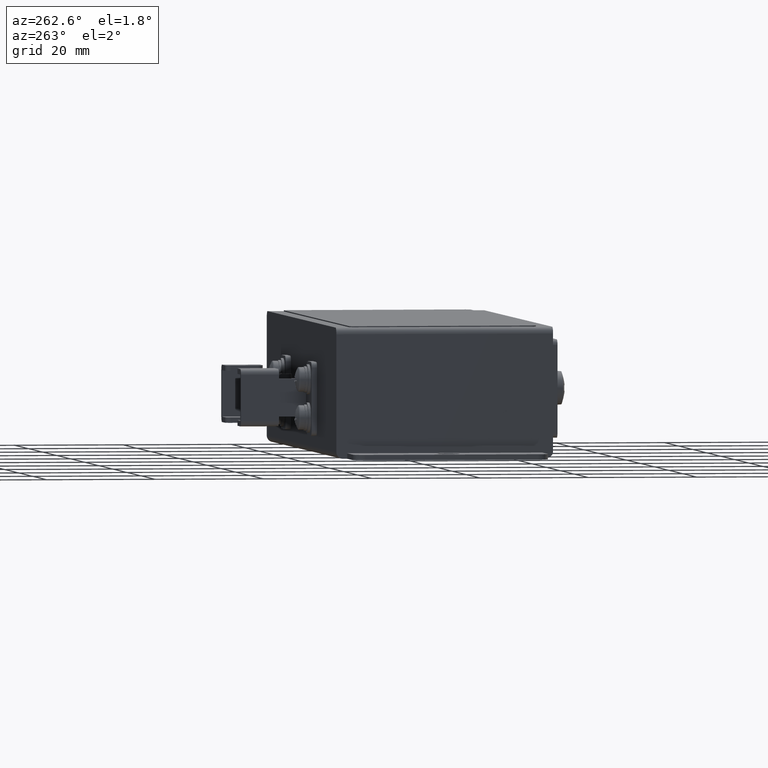
[diagram: clean part render]
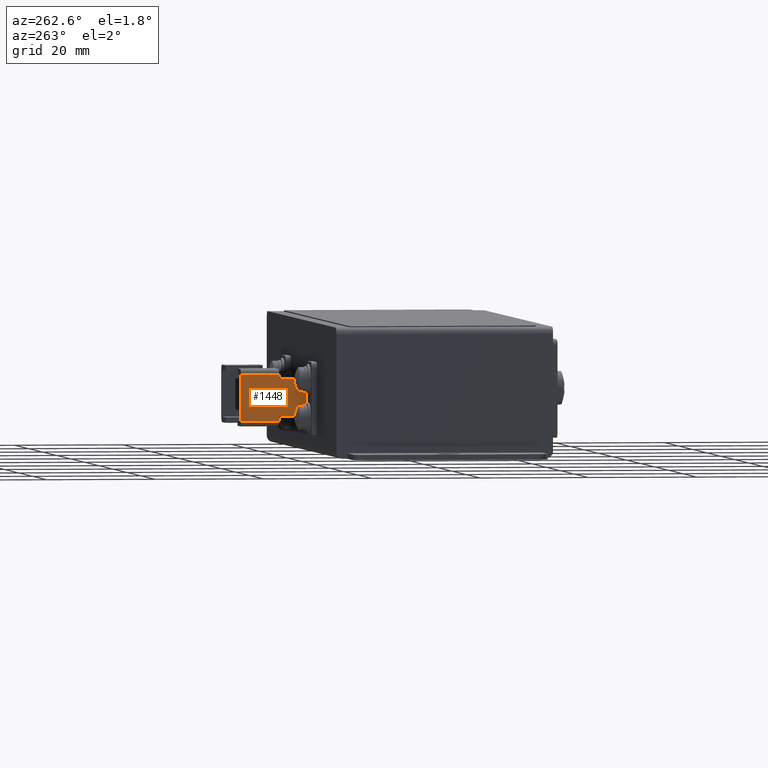
[diagram: same view with one face highlighted and labeled with its STEP entity id]
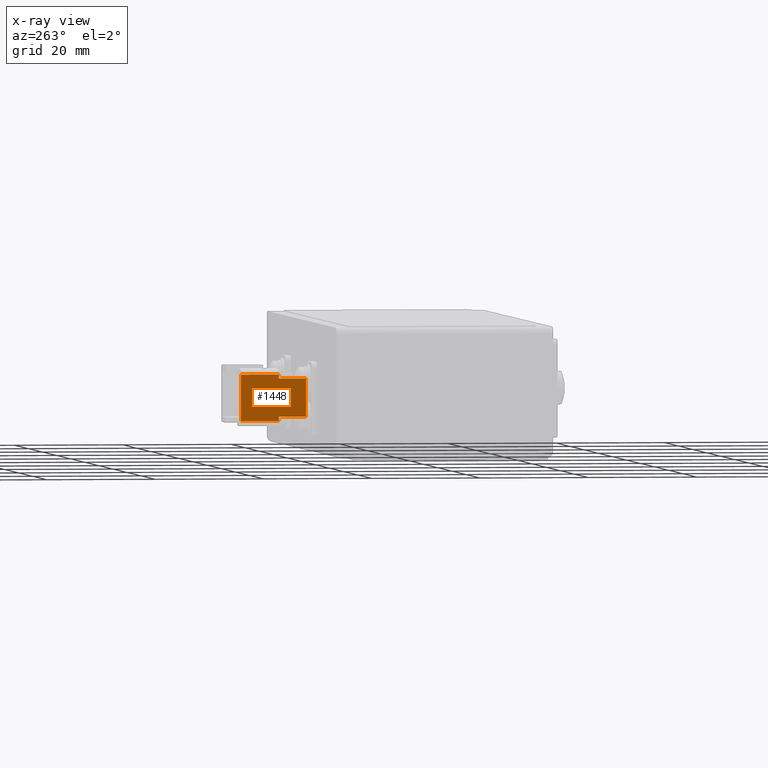
[diagram: x-ray of the same camera — body ghosted, the highlighted face saturated]
A machine part, auxiliary view. The second image highlights one B-rep face of the part: STEP entity #1448.
The next image is the same camera in x-ray: the body ghosted, the highlighted face saturated — about 0% of this face is hidden behind the body in this view.
In plain terms, the highlighted planar face has unit normal (-1, 0, 0).
Its self-contained STEP definition (entity closure, byte-faithful):
#1448 = ADVANCED_FACE( '', ( #3048 ), #3049, .T. );
#3048 = FACE_OUTER_BOUND( '', #4685, .T. );
#3049 = PLANE( '', #4686 );
#4685 = EDGE_LOOP( '', ( #8947, #8948, #8949, #8950, #8951, #8952, #8953, #8954 ) );
#4686 = AXIS2_PLACEMENT_3D( '', #8955, #8956, #8957 );
#8947 = ORIENTED_EDGE( '', *, *, #10242, .F. );
#8948 = ORIENTED_EDGE( '', *, *, #10862, .T. );
#8949 = ORIENTED_EDGE( '', *, *, #10376, .T. );
#8950 = ORIENTED_EDGE( '', *, *, #10885, .T. );
#8951 = ORIENTED_EDGE( '', *, *, #10268, .F. );
#8952 = ORIENTED_EDGE( '', *, *, #9787, .T. );
#8953 = ORIENTED_EDGE( '', *, *, #10689, .F. );
#8954 = ORIENTED_EDGE( '', *, *, #10604, .F. );
#8955 = CARTESIAN_POINT( '', ( -14.0000000000000, 32.9999855000000, -10.4000000000000 ) );
#8956 = DIRECTION( '', ( -1.00000000000000, 0.000000000000000, 0.000000000000000 ) );
#8957 = DIRECTION( '', ( 0.000000000000000, 0.000000000000000, 1.00000000000000 ) );
#9787 = EDGE_CURVE( '', #11918, #11916, #11919, .T. );
#10242 = EDGE_CURVE( '', #12618, #12620, #12621, .T. );
#10268 = EDGE_CURVE( '', #11918, #12658, #12659, .T. );
#10376 = EDGE_CURVE( '', #12810, #12811, #12812, .T. );
#10604 = EDGE_CURVE( '', #12620, #13098, #13099, .T. );
#10689 = EDGE_CURVE( '', #13098, #11916, #13206, .T. );
#10862 = EDGE_CURVE( '', #12618, #12810, #13403, .F. );
#10885 = EDGE_CURVE( '', #12811, #12658, #13427, .T. );
#11916 = VERTEX_POINT( '', #14996 );
#11918 = VERTEX_POINT( '', #14999 );
#11919 = LINE( '', #15000, #15001 );
#12618 = VERTEX_POINT( '', #16145 );
#12620 = VERTEX_POINT( '', #16147 );
#12621 = LINE( '', #16148, #16149 );
#12658 = VERTEX_POINT( '', #16211 );
#12659 = LINE( '', #16212, #16213 );
#12810 = VERTEX_POINT( '', #16463 );
#12811 = VERTEX_POINT( '', #16464 );
#12812 = LINE( '', #16465, #16466 );
#13098 = VERTEX_POINT( '', #16974 );
#13099 = LINE( '', #16975, #16976 );
#13206 = LINE( '', #17130, #17131 );
#13403 = LINE( '', #17424, #17425 );
#13427 = LINE( '', #17455, #17456 );
#14996 = CARTESIAN_POINT( '', ( -14.0000000000000, 20.9999855000000, -17.4000000000000 ) );
#14999 = CARTESIAN_POINT( '', ( -14.0000000000000, 25.9999855000000, -17.4000000000000 ) );
#15000 = CARTESIAN_POINT( '', ( -14.0000000000000, 32.9999855000000, -17.4000000000000 ) );
#15001 = VECTOR( '', #18183, 1000.00000000000 );
#16145 = CARTESIAN_POINT( '', ( -14.0000000000000, 25.9999855000000, -9.65000000000000 ) );
#16147 = CARTESIAN_POINT( '', ( -14.0000000000000, 25.9999855000000, -10.4000000000000 ) );
#16148 = CARTESIAN_POINT( '', ( -14.0000000000000, 25.9999855000000, -8.65000000000000 ) );
#16149 = VECTOR( '', #18636, 1000.00000000000 );
#16211 = CARTESIAN_POINT( '', ( -14.0000000000000, 25.9999855000000, -18.1500000000000 ) );
#16212 = CARTESIAN_POINT( '', ( -14.0000000000000, 25.9999855000000, -8.65000000000000 ) );
#16213 = VECTOR( '', #18655, 1000.00000000000 );
#16463 = CARTESIAN_POINT( '', ( -14.0000000000000, 32.9999855000000, -9.65000000000000 ) );
#16464 = CARTESIAN_POINT( '', ( -14.0000000000000, 32.9999855000000, -18.1500000000000 ) );
#16465 = CARTESIAN_POINT( '', ( -14.0000000000000, 32.9999855000000, -10.4000000000000 ) );
#16466 = VECTOR( '', #18753, 1000.00000000000 );
#16974 = CARTESIAN_POINT( '', ( -14.0000000000000, 20.9999855000000, -10.4000000000000 ) );
#16975 = CARTESIAN_POINT( '', ( -14.0000000000000, 32.9999855000000, -10.4000000000000 ) );
#16976 = VECTOR( '', #18966, 1000.00000000000 );
#17130 = CARTESIAN_POINT( '', ( -14.0000000000000, 20.9999855000000, -10.4000000000000 ) );
#17131 = VECTOR( '', #19070, 1000.00000000000 );
#17424 = CARTESIAN_POINT( '', ( -14.0000000000000, 32.9999855000000, -9.65000000000000 ) );
#17425 = VECTOR( '', #19208, 1000.00000000000 );
#17455 = CARTESIAN_POINT( '', ( -14.0000000000000, 32.9999855000000, -18.1500000000000 ) );
#17456 = VECTOR( '', #19216, 1000.00000000000 );
#18183 = DIRECTION( '', ( -0.000000000000000, -1.00000000000000, 0.000000000000000 ) );
#18636 = DIRECTION( '', ( 0.000000000000000, 0.000000000000000, -1.00000000000000 ) );
#18655 = DIRECTION( '', ( 0.000000000000000, 0.000000000000000, -1.00000000000000 ) );
#18753 = DIRECTION( '', ( 0.000000000000000, 0.000000000000000, -1.00000000000000 ) );
#18966 = DIRECTION( '', ( -0.000000000000000, -1.00000000000000, 0.000000000000000 ) );
#19070 = DIRECTION( '', ( 0.000000000000000, 0.000000000000000, -1.00000000000000 ) );
#19208 = DIRECTION( '', ( 0.000000000000000, -1.00000000000000, 0.000000000000000 ) );
#19216 = DIRECTION( '', ( 0.000000000000000, -1.00000000000000, 0.000000000000000 ) );